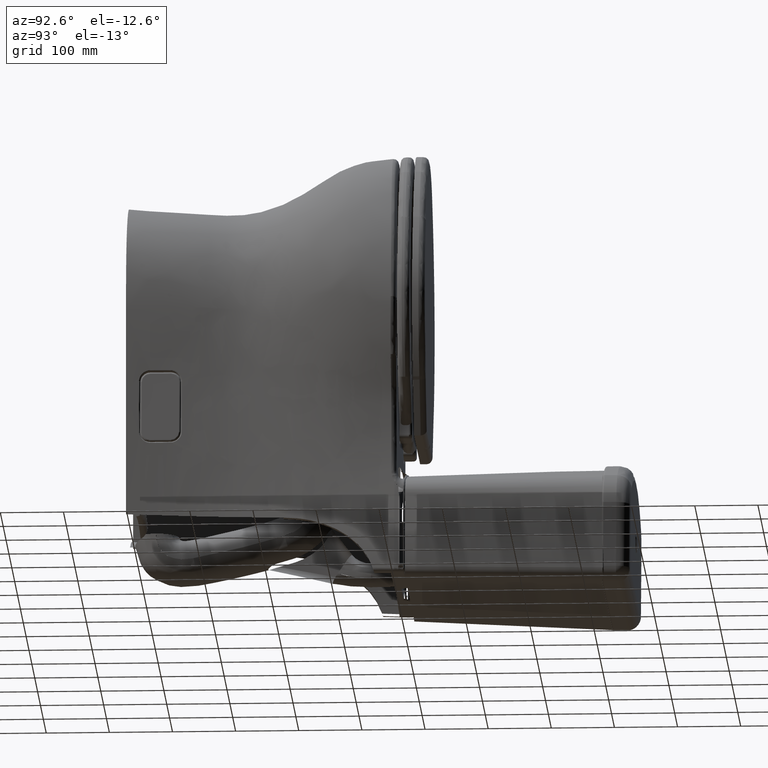
[diagram: clean part render]
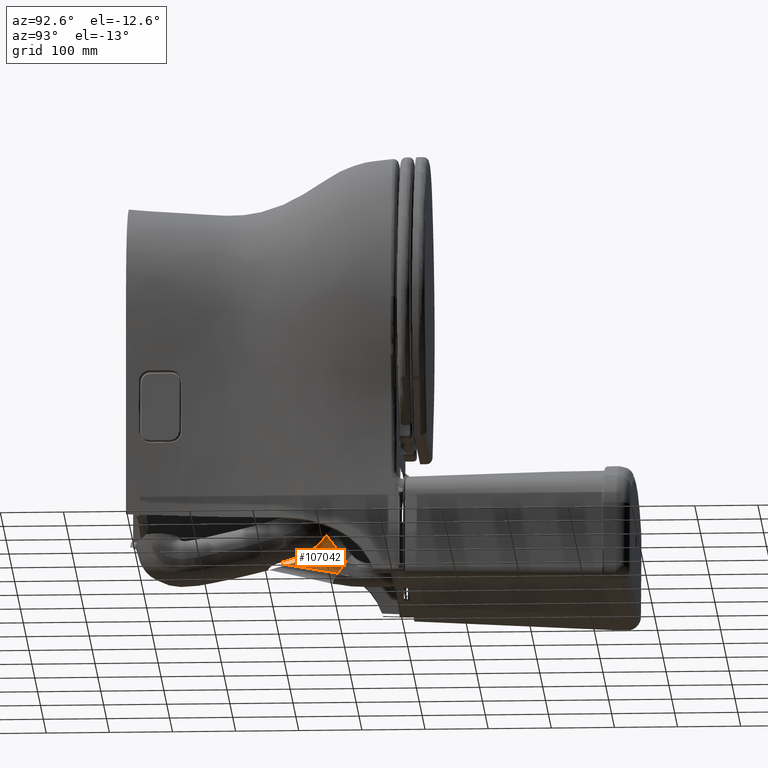
[diagram: same view with one face highlighted and labeled with its STEP entity id]
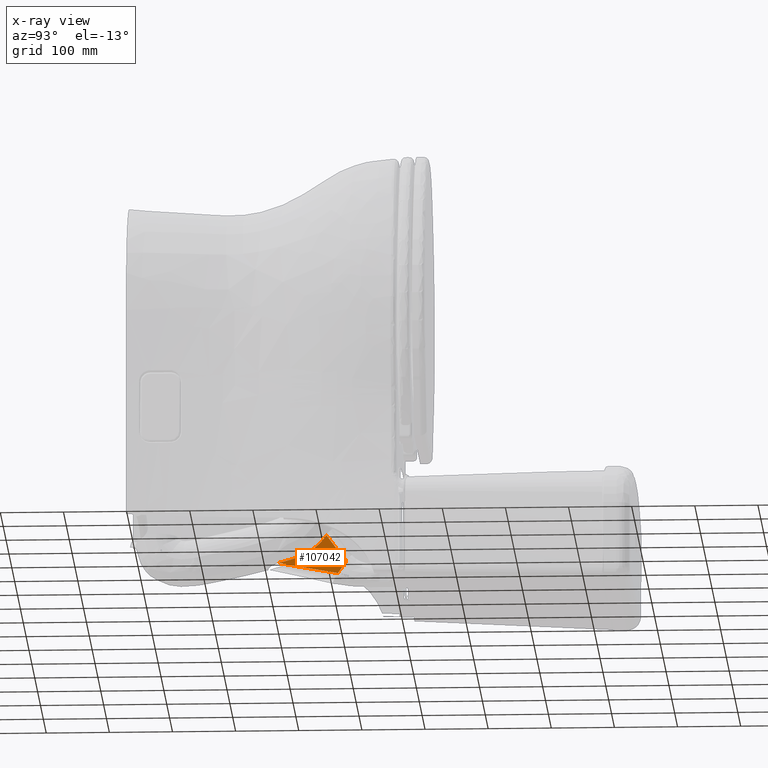
[diagram: x-ray of the same camera — body ghosted, the highlighted face saturated]
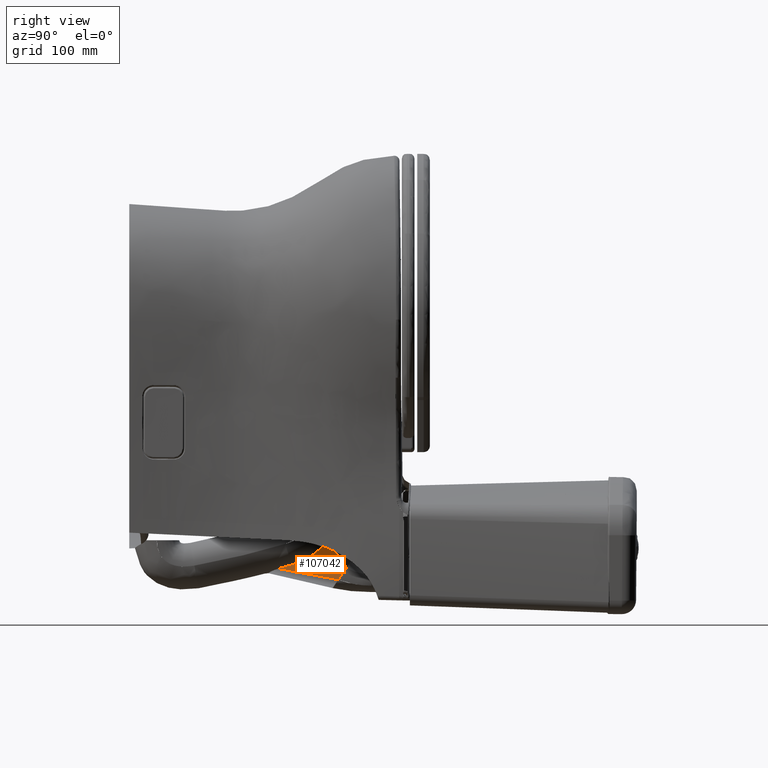
[diagram: same view with one face highlighted and labeled with its STEP entity id]
A machine part, auxiliary view. The second image highlights one B-rep face of the part: STEP entity #107042.
The next image is the same camera in x-ray: the body ghosted, the highlighted face saturated — about 0% of this face is hidden behind the body in this view.
A second angle (right view) of the same face is appended — the face is thin or edge-on in the first view.
In plain terms, the highlighted face is a freeform B-spline surface patch.
Its self-contained STEP definition (entity closure, byte-faithful):
#125 = CARTESIAN_POINT ( 'NONE',  ( 0.5593936604018990800, 5.742171554761168500, -4.698724592794828700 ) ) ;
#633 = CARTESIAN_POINT ( 'NONE',  ( 0.5596472631801368000, 5.760668480502043400, -4.710291362958173500 ) ) ;
#3805 = B_SPLINE_CURVE_WITH_KNOTS ( 'NONE', 3,
 ( #92503, #116950, #7467, #103666 ),
 .UNSPECIFIED., .F., .F.,
 ( 4, 4 ),
 ( 0.0000000000000000000, 1.000000000000000000 ),
 .UNSPECIFIED. ) ;
#7336 = CARTESIAN_POINT ( 'NONE',  ( 0.5587669802941737100, 7.272754773816142700, -6.870736700192913400 ) ) ;
#7467 = CARTESIAN_POINT ( 'NONE',  ( 0.5665849485657303800, 6.739369454749556200, -5.688507654884135800 ) ) ;
#8229 = EDGE_CURVE ( 'NONE', #44383, #131358, #32424, .T. ) ;
#8244 = B_SPLINE_CURVE_WITH_KNOTS ( 'NONE', 3,
 ( #146261, #24049, #49992, #135126 ),
 .UNSPECIFIED., .F., .F.,
 ( 4, 4 ),
 ( 0.0000000000000000000, 1.000000000000000000 ),
 .UNSPECIFIED. ) ;
#8709 = CARTESIAN_POINT ( 'NONE',  ( 0.5612609778987228700, 5.884749434202755800, -4.793650171783465200 ) ) ;
#11925 = EDGE_CURVE ( 'NONE', #123926, #126711, #105294, .T. ) ;
#12791 = ORIENTED_EDGE ( 'NONE', *, *, #151806, .T. ) ;
#14324 = CARTESIAN_POINT ( 'NONE',  ( 0.5635827299025773000, 7.083395523037338200, -6.334330961966022000 ) ) ;
#15128 = CARTESIAN_POINT ( 'NONE',  ( 0.5545085389152796300, 7.390318352778742800, -7.278513322374016600 ) ) ;
#15482 = VERTEX_POINT ( 'NONE', #136973 ) ;
#15619 = EDGE_CURVE ( 'NONE', #54287, #60757, #142479, .T. ) ;
#16364 = EDGE_CURVE ( 'NONE', #55378, #62122, #113117, .T. ) ;
#17706 = VECTOR ( 'NONE', #37479, 39.37007874015748100 ) ;
#17726 = B_SPLINE_CURVE_WITH_KNOTS ( 'NONE', 3,
 ( #73002, #87344, #97977, #99029 ),
 .UNSPECIFIED., .F., .F.,
 ( 4, 4 ),
 ( 0.0000000000000000000, 1.000000000000000000 ),
 .UNSPECIFIED. ) ;
#18465 = B_SPLINE_SURFACE_WITH_KNOTS ( 'NONE', 3, 3, ( 
 ( #128023, #72131, #92881, #55659 ),
 ( #34941, #132268, #157190, #92365 ),
 ( #44438, #56695, #144433, #71605 ),
 ( #84367, #43411, #35478, #132799 ) ),
 .UNSPECIFIED., .F., .F., .F.,
 ( 4, 4 ),
 ( 4, 4 ),
 ( 0.0000000000000000000, 1.000000000000000000 ),
 ( -7.604532898967999500E-012, 0.8147815567930000200 ),
 .UNSPECIFIED. ) ;
#19567 = CARTESIAN_POINT ( 'NONE',  ( 0.5598777404171567700, 7.239867155713121800, -6.761661124462087900 ) ) ;
#21064 = EDGE_CURVE ( 'NONE', #105424, #108189, #124702, .T. ) ;
#21167 = EDGE_CURVE ( 'NONE', #131358, #27695, #35870, .T. ) ;
#22282 = CARTESIAN_POINT ( 'NONE',  ( 0.5628479816181649600, 6.020718738747244300, -4.895534293736220700 ) ) ;
#23100 = ORIENTED_EDGE ( 'NONE', *, *, #73510, .T. ) ;
#23330 = LINE ( 'NONE', #48099, #17706 ) ;
#23632 = CARTESIAN_POINT ( 'NONE',  ( 0.5615800938362847100, 5.910453571193392500, -4.811830221589194600 ) ) ;
#23786 = ORIENTED_EDGE ( 'NONE', *, *, #144306, .T. ) ;
#24049 = CARTESIAN_POINT ( 'NONE',  ( 0.5648848145969392900, 6.233887273092262800, -5.080060250183186600 ) ) ;
#25292 = ORIENTED_EDGE ( 'NONE', *, *, #138594, .T. ) ;
#25853 = CARTESIAN_POINT ( 'NONE',  ( 0.5626175026839219700, 5.999553725267951200, -4.878754123971263300 ) ) ;
#25894 = EDGE_CURVE ( 'NONE', #108189, #57911, #39818, .T. ) ;
#26618 = CARTESIAN_POINT ( 'NONE',  ( 0.5666562656252076600, 6.608113676711417900, -5.502304124236219200 ) ) ;
#26937 = ORIENTED_EDGE ( 'NONE', *, *, #43966, .T. ) ;
#27607 = ORIENTED_EDGE ( 'NONE', *, *, #67926, .T. ) ;
#27695 = VERTEX_POINT ( 'NONE', #40484 ) ;
#28243 = CARTESIAN_POINT ( 'NONE',  ( 0.5566436666418483900, 7.331903106569689600, -7.074520863921261300 ) ) ;
#28760 = CARTESIAN_POINT ( 'NONE',  ( 0.5572459626341993400, 7.315269647363565200, -7.016833619981873900 ) ) ;
#29278 = CARTESIAN_POINT ( 'NONE',  ( 0.5587669802941737100, 7.272754773816142700, -6.870736700192913400 ) ) ;
#31281 = CARTESIAN_POINT ( 'NONE',  ( 0.5648952549844037400, 6.989985595612313100, -6.130856342547487800 ) ) ;
#31562 = CARTESIAN_POINT ( 'NONE',  ( 0.5666562656252076600, 6.608113676711417900, -5.502304124236219200 ) ) ;
#31674 = EDGE_CURVE ( 'NONE', #27695, #131568, #68562, .T. ) ;
#31928 = CARTESIAN_POINT ( 'NONE',  ( 0.6299046589622419000, 8.198925532644286900, -3.969920171381744000 ) ) ;
#32056 = CARTESIAN_POINT ( 'NONE',  ( 0.5666335282239337600, 6.707707263107482600, -5.641850911476379500 ) ) ;
#32374 = CARTESIAN_POINT ( 'NONE',  ( 0.5658749331545365200, 6.885939210122441700, -5.931565421681102500 ) ) ;
#32424 = B_SPLINE_CURVE_WITH_KNOTS ( 'NONE', 3,
 ( #32056, #116603, #55438, #31562 ),
 .UNSPECIFIED., .F., .F.,
 ( 4, 4 ),
 ( 0.0000000000000000000, 1.000000000000000000 ),
 .UNSPECIFIED. ) ;
#33329 = ORIENTED_EDGE ( 'NONE', *, *, #16364, .T. ) ;
#33356 = VERTEX_POINT ( 'NONE', #37151 ) ;
#33887 = CARTESIAN_POINT ( 'NONE',  ( 0.5651639777500131500, 6.965040993721656200, -6.081164805519685000 ) ) ;
#34941 = CARTESIAN_POINT ( 'NONE',  ( 0.6299046586480315800, 7.768041980485433500, -3.676440282549212400 ) ) ;
#35092 = ORIENTED_EDGE ( 'NONE', *, *, #31674, .T. ) ;
#35478 = CARTESIAN_POINT ( 'NONE',  ( 0.5764413016480315300, 7.733440740485432800, -6.462940741547243700 ) ) ;
#35807 = CARTESIAN_POINT ( 'NONE',  ( 0.5612609778987228700, 5.884749434202755800, -4.793650171783465200 ) ) ;
#35870 = B_SPLINE_CURVE_WITH_KNOTS ( 'NONE', 3,
 ( #26618, #64818, #76522, #63770 ),
 .UNSPECIFIED., .F., .F.,
 ( 4, 4 ),
 ( 0.0000000000000000000, 1.000000000000000000 ),
 .UNSPECIFIED. ) ;
#36358 = EDGE_CURVE ( 'NONE', #74363, #33356, #91838, .T. ) ;
#37140 = CARTESIAN_POINT ( 'NONE',  ( 0.5642460652616766400, 7.037826824464565900, -6.233755061377954700 ) ) ;
#37151 = CARTESIAN_POINT ( 'NONE',  ( 0.5620898234587499200, 5.953540159596062000, -4.843743462881891800 ) ) ;
#37479 = DIRECTION ( 'NONE',  ( 0.0000000000000000000, 0.8264989692234775400, -0.5629382327329783800 ) ) ;
#39818 = B_SPLINE_CURVE_WITH_KNOTS ( 'NONE', 3,
 ( #73794, #87094, #14324, #37140 ),
 .UNSPECIFIED., .F., .F.,
 ( 4, 4 ),
 ( 0.0000000000000000000, 1.000000000000000000 ),
 .UNSPECIFIED. ) ;
#39861 = CARTESIAN_POINT ( 'NONE',  ( 0.5613942381660748100, 7.185530704508650500, -6.599971067462060000 ) ) ;
#40357 = CARTESIAN_POINT ( 'NONE',  ( 0.5664226600178542400, 6.502461074143703000, -5.368497265035432300 ) ) ;
#40484 = CARTESIAN_POINT ( 'NONE',  ( 0.5664226600178542400, 6.502461074143703000, -5.368497265035432300 ) ) ;
#41465 = CARTESIAN_POINT ( 'NONE',  ( 0.6299046589645387300, 7.441365177559893200, -3.453936844897453500 ) ) ;
#41563 = ORIENTED_EDGE ( 'NONE', *, *, #97849, .T. ) ;
#43411 = CARTESIAN_POINT ( 'NONE',  ( 0.6031729796480315200, 7.966183136485434500, -5.216430456547244400 ) ) ;
#43966 = EDGE_CURVE ( 'NONE', #131568, #127489, #8244, .T. ) ;
#44255 = VERTEX_POINT ( 'NONE', #41465 ) ;
#44383 = VERTEX_POINT ( 'NONE', #153599 ) ;
#44438 = CARTESIAN_POINT ( 'NONE',  ( 0.6299046586480315800, 7.872248729485432900, -3.747416733549212800 ) ) ;
#45058 = CARTESIAN_POINT ( 'NONE',  ( 0.5663678268492674500, 6.800237021212207200, -5.785091601708662000 ) ) ;
#45374 = CARTESIAN_POINT ( 'NONE',  ( 0.5523583118781363300, 7.447971247349213900, -7.482722359838581900 ) ) ;
#45922 = CARTESIAN_POINT ( 'NONE',  ( 0.5608200827273528400, 5.849738412132286000, -4.769251791783465100 ) ) ;
#47920 = ORIENTED_EDGE ( 'NONE', *, *, #71895, .T. ) ;
#48099 = CARTESIAN_POINT ( 'NONE',  ( 0.6299046586480315800, 7.820145354985433200, -3.711928508048966300 ) ) ;
#48311 = B_SPLINE_CURVE_WITH_KNOTS ( 'NONE', 3,
 ( #33887, #155617, #93985, #58307 ),
 .UNSPECIFIED., .F., .F.,
 ( 4, 4 ),
 ( 0.0000000000000000000, 1.000000000000000000 ),
 .UNSPECIFIED. ) ;
#48551 = ORIENTED_EDGE ( 'NONE', *, *, #11925, .T. ) ;
#49992 = CARTESIAN_POINT ( 'NONE',  ( 0.5645430469175147800, 6.192665681193410900, -5.041546057505732900 ) ) ;
#50754 = CARTESIAN_POINT ( 'NONE',  ( 0.5628479816181649600, 6.020718738747244300, -4.895534293736220700 ) ) ;
#51240 = CARTESIAN_POINT ( 'NONE',  ( 0.5603616811586653600, 5.814309593079134000, -4.745293332314959800 ) ) ;
#52076 = ORIENTED_EDGE ( 'NONE', *, *, #8229, .T. ) ;
#52583 = CARTESIAN_POINT ( 'NONE',  ( 0.5618498417689658000, 7.166077854012598900, -6.547137685917324000 ) ) ;
#52946 = CARTESIAN_POINT ( 'NONE',  ( 0.5501879240226643700, 7.504862721753425200, -7.687147662393035900 ) ) ;
#54287 = VERTEX_POINT ( 'NONE', #31928 ) ;
#54653 = B_SPLINE_CURVE_WITH_KNOTS ( 'NONE', 3,
 ( #72693, #157230, #83879, #45374 ),
 .UNSPECIFIED., .F., .F.,
 ( 4, 4 ),
 ( 0.0000000000000000000, 1.000000000000000000 ),
 .UNSPECIFIED. ) ;
#55378 = VERTEX_POINT ( 'NONE', #144054 ) ;
#55438 = CARTESIAN_POINT ( 'NONE',  ( 0.5666909014515425500, 6.642051965344999000, -5.547512338700156100 ) ) ;
#55659 = CARTESIAN_POINT ( 'NONE',  ( 0.5497096236480315500, 5.508802943485433100, -4.869684737547245000 ) ) ;
#56195 = CARTESIAN_POINT ( 'NONE',  ( 0.5645892841549525800, 7.014248945991675500, -6.181715694161346700 ) ) ;
#56695 = CARTESIAN_POINT ( 'NONE',  ( 0.6031729796480315200, 7.612677822485434100, -4.883100071547244300 ) ) ;
#57911 = VERTEX_POINT ( 'NONE', #75894 ) ;
#58008 = VERTEX_POINT ( 'NONE', #145412 ) ;
#58307 = CARTESIAN_POINT ( 'NONE',  ( 0.5658749331545365200, 6.885939210122441700, -5.931565421681102500 ) ) ;
#60550 = CARTESIAN_POINT ( 'NONE',  ( 0.5537139367613579400, 7.411847267524954900, -7.354224459275583200 ) ) ;
#60757 = VERTEX_POINT ( 'NONE', #52946 ) ;
#62122 = VERTEX_POINT ( 'NONE', #126414 ) ;
#62147 = VERTEX_POINT ( 'NONE', #151865 ) ;
#63198 = CARTESIAN_POINT ( 'NONE',  ( 0.5651784839506564000, 6.273711538096851100, -5.119251982826771300 ) ) ;
#63770 = CARTESIAN_POINT ( 'NONE',  ( 0.5664226600178542400, 6.502461074143703000, -5.368497265035432300 ) ) ;
#64818 = CARTESIAN_POINT ( 'NONE',  ( 0.5666213677254318100, 6.573918594266540800, -5.456753842243212900 ) ) ;
#67467 = CARTESIAN_POINT ( 'NONE',  ( 0.5523583118781363300, 7.447971247349213900, -7.482722359838581900 ) ) ;
#67828 = B_SPLINE_CURVE_WITH_KNOTS ( 'NONE', 3,
 ( #88882, #147912, #88346, #100553 ),
 .UNSPECIFIED., .F., .F.,
 ( 4, 4 ),
 ( 0.0000000000000000000, 1.000000000000000000 ),
 .UNSPECIFIED. ) ;
#67926 = EDGE_CURVE ( 'NONE', #15482, #58008, #80044, .T. ) ;
#68562 = B_SPLINE_CURVE_WITH_KNOTS ( 'NONE', 3,
 ( #40357, #149884, #123898, #63198 ),
 .UNSPECIFIED., .F., .F.,
 ( 4, 4 ),
 ( 0.0000000000000000000, 1.000000000000000000 ),
 .UNSPECIFIED. ) ;
#69387 = VERTEX_POINT ( 'NONE', #67467 ) ;
#70705 = CARTESIAN_POINT ( 'NONE',  ( 0.5609670477844718200, 5.861262085366876200, -4.777171887999330100 ) ) ;
#71605 = CARTESIAN_POINT ( 'NONE',  ( 0.5497096236480315500, 7.093536007485433000, -7.154466746547244700 ) ) ;
#71895 = EDGE_CURVE ( 'NONE', #60757, #69387, #54653, .T. ) ;
#72131 = CARTESIAN_POINT ( 'NONE',  ( 0.6031729796480315200, 6.797177766485432000, -3.925852808549212800 ) ) ;
#72693 = CARTESIAN_POINT ( 'NONE',  ( 0.5501879240226643700, 7.504862721753425200, -7.687147662393035900 ) ) ;
#73002 = CARTESIAN_POINT ( 'NONE',  ( 0.5641531809124068500, 6.150335569467715800, -5.004107397385827700 ) ) ;
#73510 = EDGE_CURVE ( 'NONE', #58008, #62147, #143094, .T. ) ;
#73631 = EDGE_CURVE ( 'NONE', #62122, #44383, #3805, .T. ) ;
#73794 = CARTESIAN_POINT ( 'NONE',  ( 0.5618498417689658000, 7.166077854012598900, -6.547137685917324000 ) ) ;
#74363 = VERTEX_POINT ( 'NONE', #22282 ) ;
#74971 = ORIENTED_EDGE ( 'NONE', *, *, #146687, .T. ) ;
#75894 = CARTESIAN_POINT ( 'NONE',  ( 0.5642460652616766400, 7.037826824464565900, -6.233755061377954700 ) ) ;
#76522 = CARTESIAN_POINT ( 'NONE',  ( 0.5665434991896451900, 6.538685982420238600, -5.412134906338031300 ) ) ;
#77510 = B_SPLINE_CURVE_WITH_KNOTS ( 'NONE', 3,
 ( #144038, #97229, #60550, #95672 ),
 .UNSPECIFIED., .F., .F.,
 ( 4, 4 ),
 ( 0.0000000000000000000, 1.000000000000000000 ),
 .UNSPECIFIED. ) ;
#77754 = CARTESIAN_POINT ( 'NONE',  ( 0.5566436666418483900, 7.331903106569689600, -7.074520863921261300 ) ) ;
#79470 = DIRECTION ( 'NONE',  ( -0.02107621178948570300, -0.1835024291025017000, -0.9827932904787689500 ) ) ;
#80040 = ORIENTED_EDGE ( 'NONE', *, *, #107119, .T. ) ;
#80044 = B_SPLINE_CURVE_WITH_KNOTS ( 'NONE', 3,
 ( #15128, #99058, #102752, #77754 ),
 .UNSPECIFIED., .F., .F.,
 ( 4, 4 ),
 ( 0.0000000000000000000, 1.000000000000000000 ),
 .UNSPECIFIED. ) ;
#80545 = CARTESIAN_POINT ( 'NONE',  ( 0.5666562656252076600, 6.608113676711417900, -5.502304124236219200 ) ) ;
#81759 = CARTESIAN_POINT ( 'NONE',  ( 0.5660772366296793500, 6.858299401119853500, -5.881892461941463400 ) ) ;
#83879 = CARTESIAN_POINT ( 'NONE',  ( 0.5515411731899869700, 7.469644746857532900, -7.560047353910771800 ) ) ;
#84367 = CARTESIAN_POINT ( 'NONE',  ( 0.6299046586480315800, 8.198925532485432700, -3.969920171547243600 ) ) ;
#86135 = B_SPLINE_CURVE_WITH_KNOTS ( 'NONE', 3,
 ( #90309, #56195, #31281, #92395 ),
 .UNSPECIFIED., .F., .F.,
 ( 4, 4 ),
 ( 0.0000000000000000000, 1.000000000000000000 ),
 .UNSPECIFIED. ) ;
#87094 = CARTESIAN_POINT ( 'NONE',  ( 0.5627839887382990500, 7.126192692727700600, -6.438810742264156100 ) ) ;
#87344 = CARTESIAN_POINT ( 'NONE',  ( 0.5637783325574510200, 6.109636006870079700, -4.968110864599549500 ) ) ;
#87765 = VERTEX_POINT ( 'NONE', #100336 ) ;
#88346 = CARTESIAN_POINT ( 'NONE',  ( 0.5605144816815567100, 5.825948736209380900, -4.753032007690739700 ) ) ;
#88882 = CARTESIAN_POINT ( 'NONE',  ( 0.5608200827273528400, 5.849738412132286000, -4.769251791783465100 ) ) ;
#90309 = CARTESIAN_POINT ( 'NONE',  ( 0.5642460652616766400, 7.037826824464565900, -6.233755061377954700 ) ) ;
#90431 = CARTESIAN_POINT ( 'NONE',  ( 0.5579537338516140600, 7.295596954037398200, -6.948930468867998500 ) ) ;
#91032 = ORIENTED_EDGE ( 'NONE', *, *, #15619, .T. ) ;
#91055 = LINE ( 'NONE', #156979, #131036 ) ;
#91838 = B_SPLINE_CURVE_WITH_KNOTS ( 'NONE', 3,
 ( #50754, #25853, #110855, #123153 ),
 .UNSPECIFIED., .F., .F.,
 ( 4, 4 ),
 ( 0.0000000000000000000, 1.000000000000000000 ),
 .UNSPECIFIED. ) ;
#92365 = CARTESIAN_POINT ( 'NONE',  ( 0.5497096236480315500, 5.915965280485432100, -5.424669017547243400 ) ) ;
#92395 = CARTESIAN_POINT ( 'NONE',  ( 0.5651639777500131500, 6.965040993721656200, -6.081164805519685000 ) ) ;
#92503 = CARTESIAN_POINT ( 'NONE',  ( 0.5663678268492674500, 6.800237021212207200, -5.785091601708662000 ) ) ;
#92751 = EDGE_CURVE ( 'NONE', #87765, #55378, #48311, .T. ) ;
#92881 = CARTESIAN_POINT ( 'NONE',  ( 0.5764413016480315300, 6.152990355485433900, -4.397768773547245000 ) ) ;
#93091 = CARTESIAN_POINT ( 'NONE',  ( 0.5603920293866008200, 7.222069624307875000, -6.707680719874014500 ) ) ;
#93326 = CARTESIAN_POINT ( 'NONE',  ( 0.5651784839506564000, 6.273711538096851100, -5.119251982826771300 ) ) ;
#93836 = EDGE_CURVE ( 'NONE', #69387, #15482, #77510, .T. ) ;
#93985 = CARTESIAN_POINT ( 'NONE',  ( 0.5656754311885896500, 6.913196266697503300, -5.980550514759780600 ) ) ;
#95672 = CARTESIAN_POINT ( 'NONE',  ( 0.5545085389152796300, 7.390318352778742800, -7.278513322374016600 ) ) ;
#96386 = DIRECTION ( 'NONE',  ( 0.03345653246684543400, 0.8062447940832536700, 0.5906352448414730100 ) ) ;
#96406 = CARTESIAN_POINT ( 'NONE',  ( 0.5618563756896315400, 5.933540192456751700, -4.828754367277811700 ) ) ;
#96839 = CARTESIAN_POINT ( 'NONE',  ( 0.5599699367657170500, 5.784418273136981100, -4.725385577461465500 ) ) ;
#97229 = CARTESIAN_POINT ( 'NONE',  ( 0.5529971944156572000, 7.431025749918767100, -7.422265560077470100 ) ) ;
#97263 = CARTESIAN_POINT ( 'NONE',  ( 0.5641531809124068500, 6.150335569467715800, -5.004107397385827700 ) ) ;
#97849 = EDGE_CURVE ( 'NONE', #57911, #87765, #86135, .T. ) ;
#97977 = CARTESIAN_POINT ( 'NONE',  ( 0.5633432661260259200, 6.066201005657704900, -4.931593813298300200 ) ) ;
#99029 = CARTESIAN_POINT ( 'NONE',  ( 0.5628479816181649600, 6.020718738747244300, -4.895534293736220700 ) ) ;
#99058 = CARTESIAN_POINT ( 'NONE',  ( 0.5551410767667988000, 7.373180400076096300, -7.218243965517149100 ) ) ;
#100336 = CARTESIAN_POINT ( 'NONE',  ( 0.5651639777500131500, 6.965040993721656200, -6.081164805519685000 ) ) ;
#100553 = CARTESIAN_POINT ( 'NONE',  ( 0.5603616811586653600, 5.814309593079134000, -4.745293332314959800 ) ) ;
#102530 = VECTOR ( 'NONE', #79470, 39.37007874015748900 ) ;
#102752 = CARTESIAN_POINT ( 'NONE',  ( 0.5558527860089705900, 7.353744662997574000, -7.150270538804108800 ) ) ;
#103666 = CARTESIAN_POINT ( 'NONE',  ( 0.5666335282239337600, 6.707707263107482600, -5.641850911476379500 ) ) ;
#103926 = CARTESIAN_POINT ( 'NONE',  ( 0.5898071407730314200, 7.849811938610431900, -5.839685599047243200 ) ) ;
#105294 = B_SPLINE_CURVE_WITH_KNOTS ( 'NONE', 3,
 ( #130316, #131370, #70705, #121239 ),
 .UNSPECIFIED., .F., .F.,
 ( 4, 4 ),
 ( 0.0000000000000000000, 1.000000000000000000 ),
 .UNSPECIFIED. ) ;
#105424 = VERTEX_POINT ( 'NONE', #93091 ) ;
#106014 = B_SPLINE_CURVE_WITH_KNOTS ( 'NONE', 3,
 ( #110105, #96839, #633, #125 ),
 .UNSPECIFIED., .F., .F.,
 ( 4, 4 ),
 ( 0.0000000000000000000, 1.000000000000000000 ),
 .UNSPECIFIED. ) ;
#107042 = ADVANCED_FACE ( 'NONE', ( #107932 ), #18465, .T. ) ;
#107097 = CARTESIAN_POINT ( 'NONE',  ( 0.5618498417689658000, 7.166077854012598900, -6.547137685917324000 ) ) ;
#107119 = EDGE_CURVE ( 'NONE', #62147, #105424, #149603, .T. ) ;
#107263 = CARTESIAN_POINT ( 'NONE',  ( 0.5593936604018990800, 5.742171554761168500, -4.698724592794828700 ) ) ;
#107932 = FACE_OUTER_BOUND ( 'NONE', #154660, .T. ) ;
#108189 = VERTEX_POINT ( 'NONE', #107097 ) ;
#108278 = CARTESIAN_POINT ( 'NONE',  ( 0.5593360573863454000, 7.256770736945966000, -6.816019852197548800 ) ) ;
#110105 = CARTESIAN_POINT ( 'NONE',  ( 0.5603616811586653600, 5.814309593079134000, -4.745293332314959800 ) ) ;
#110376 = ORIENTED_EDGE ( 'NONE', *, *, #25894, .T. ) ;
#110855 = CARTESIAN_POINT ( 'NONE',  ( 0.5623647832974481000, 5.977096552198671200, -4.861397941816138200 ) ) ;
#110899 = ORIENTED_EDGE ( 'NONE', *, *, #93836, .T. ) ;
#113117 = B_SPLINE_CURVE_WITH_KNOTS ( 'NONE', 3,
 ( #32374, #81759, #140828, #45058 ),
 .UNSPECIFIED., .F., .F.,
 ( 4, 4 ),
 ( 0.0000000000000000000, 1.000000000000000000 ),
 .UNSPECIFIED. ) ;
#113765 = CARTESIAN_POINT ( 'NONE',  ( 0.5609083007052825300, 7.204203490971151400, -6.653492244670867500 ) ) ;
#114593 = ORIENTED_EDGE ( 'NONE', *, *, #36358, .T. ) ;
#116603 = CARTESIAN_POINT ( 'NONE',  ( 0.5666833223177840700, 6.675253539933030400, -5.594027784856924900 ) ) ;
#116950 = CARTESIAN_POINT ( 'NONE',  ( 0.5664963814408396900, 6.770214260127751500, -5.736251726332939800 ) ) ;
#121239 = CARTESIAN_POINT ( 'NONE',  ( 0.5608200827273528400, 5.849738412132286000, -4.769251791783465100 ) ) ;
#123153 = CARTESIAN_POINT ( 'NONE',  ( 0.5620898234587499200, 5.953540159596062000, -4.843743462881891800 ) ) ;
#123305 = EDGE_CURVE ( 'NONE', #44255, #54287, #23330, .T. ) ;
#123898 = CARTESIAN_POINT ( 'NONE',  ( 0.5657659761349352900, 6.353380890796114700, -5.197655943897306200 ) ) ;
#123926 = VERTEX_POINT ( 'NONE', #8709 ) ;
#124702 = B_SPLINE_CURVE_WITH_KNOTS ( 'NONE', 3,
 ( #149913, #113765, #39861, #52583 ),
 .UNSPECIFIED., .F., .F.,
 ( 4, 4 ),
 ( 0.0000000000000000000, 1.000000000000000000 ),
 .UNSPECIFIED. ) ;
#126414 = CARTESIAN_POINT ( 'NONE',  ( 0.5663678268492674500, 6.800237021212207200, -5.785091601708662000 ) ) ;
#126711 = VERTEX_POINT ( 'NONE', #45922 ) ;
#127489 = VERTEX_POINT ( 'NONE', #97263 ) ;
#128023 = CARTESIAN_POINT ( 'NONE',  ( 0.6299046586480315800, 7.441365177485433700, -3.453936844549212900 ) ) ;
#129574 = CARTESIAN_POINT ( 'NONE',  ( 0.5603920293866008200, 7.222069624307875000, -6.707680719874014500 ) ) ;
#129907 = ORIENTED_EDGE ( 'NONE', *, *, #73631, .T. ) ;
#130316 = CARTESIAN_POINT ( 'NONE',  ( 0.5612609778987228700, 5.884749434202755800, -4.793650171783465200 ) ) ;
#131036 = VECTOR ( 'NONE', #96386, 39.37007874015748100 ) ;
#131358 = VERTEX_POINT ( 'NONE', #80545 ) ;
#131370 = CARTESIAN_POINT ( 'NONE',  ( 0.5611140128415952300, 5.872936024261663100, -4.785309991261398100 ) ) ;
#131568 = VERTEX_POINT ( 'NONE', #93326 ) ;
#132079 = CARTESIAN_POINT ( 'NONE',  ( 0.5620898234587499200, 5.953540159596062000, -4.843743462881891800 ) ) ;
#132166 = ORIENTED_EDGE ( 'NONE', *, *, #92751, .T. ) ;
#132268 = CARTESIAN_POINT ( 'NONE',  ( 0.6031729796480315200, 7.150683080485433300, -4.259183194547244300 ) ) ;
#132799 = CARTESIAN_POINT ( 'NONE',  ( 0.5497096236480315500, 7.500698345485433000, -7.709451026547244000 ) ) ;
#135126 = CARTESIAN_POINT ( 'NONE',  ( 0.5641531809124068500, 6.150335569467715800, -5.004107397385827700 ) ) ;
#136973 = CARTESIAN_POINT ( 'NONE',  ( 0.5545085389152796300, 7.390318352778742800, -7.278513322374016600 ) ) ;
#138594 = EDGE_CURVE ( 'NONE', #127489, #74363, #17726, .T. ) ;
#140828 = CARTESIAN_POINT ( 'NONE',  ( 0.5662415345279263600, 6.829731438310243000, -5.833071990018768600 ) ) ;
#142479 = LINE ( 'NONE', #103926, #102530 ) ;
#143094 = B_SPLINE_CURVE_WITH_KNOTS ( 'NONE', 3,
 ( #28243, #28760, #90431, #29278 ),
 .UNSPECIFIED., .F., .F.,
 ( 4, 4 ),
 ( 0.0000000000000000000, 1.000000000000000000 ),
 .UNSPECIFIED. ) ;
#144038 = CARTESIAN_POINT ( 'NONE',  ( 0.5523583118781363300, 7.447971247349213900, -7.482722359838581900 ) ) ;
#144054 = CARTESIAN_POINT ( 'NONE',  ( 0.5658749331545365200, 6.885939210122441700, -5.931565421681102500 ) ) ;
#144306 = EDGE_CURVE ( 'NONE', #147004, #144908, #106014, .T. ) ;
#144433 = CARTESIAN_POINT ( 'NONE',  ( 0.5764413016480315300, 7.353106915485433600, -6.018783409547245000 ) ) ;
#144908 = VERTEX_POINT ( 'NONE', #107263 ) ;
#145359 = ORIENTED_EDGE ( 'NONE', *, *, #151874, .T. ) ;
#145412 = CARTESIAN_POINT ( 'NONE',  ( 0.5566436666418483900, 7.331903106569689600, -7.074520863921261300 ) ) ;
#146261 = CARTESIAN_POINT ( 'NONE',  ( 0.5651784839506564000, 6.273711538096851100, -5.119251982826771300 ) ) ;
#146687 = EDGE_CURVE ( 'NONE', #33356, #123926, #147798, .T. ) ;
#147004 = VERTEX_POINT ( 'NONE', #51240 ) ;
#147798 = B_SPLINE_CURVE_WITH_KNOTS ( 'NONE', 3,
 ( #132079, #96406, #23632, #35807 ),
 .UNSPECIFIED., .F., .F.,
 ( 4, 4 ),
 ( 0.0000000000000000000, 1.000000000000000000 ),
 .UNSPECIFIED. ) ;
#147912 = CARTESIAN_POINT ( 'NONE',  ( 0.5606672822044525000, 5.837762466270731900, -4.761024234057798000 ) ) ;
#149603 = B_SPLINE_CURVE_WITH_KNOTS ( 'NONE', 3,
 ( #7336, #108278, #19567, #129574 ),
 .UNSPECIFIED., .F., .F.,
 ( 4, 4 ),
 ( 0.0000000000000000000, 1.000000000000000000 ),
 .UNSPECIFIED. ) ;
#149884 = CARTESIAN_POINT ( 'NONE',  ( 0.5661807014907068700, 6.429927255290112800, -5.281120788968906700 ) ) ;
#149913 = CARTESIAN_POINT ( 'NONE',  ( 0.5603920293866008200, 7.222069624307875000, -6.707680719874014500 ) ) ;
#150216 = ORIENTED_EDGE ( 'NONE', *, *, #21064, .T. ) ;
#151806 = EDGE_CURVE ( 'NONE', #144908, #44255, #91055, .T. ) ;
#151865 = CARTESIAN_POINT ( 'NONE',  ( 0.5587669802941737100, 7.272754773816142700, -6.870736700192913400 ) ) ;
#151874 = EDGE_CURVE ( 'NONE', #126711, #147004, #67828, .T. ) ;
#153326 = ORIENTED_EDGE ( 'NONE', *, *, #123305, .T. ) ;
#153599 = CARTESIAN_POINT ( 'NONE',  ( 0.5666335282239337600, 6.707707263107482600, -5.641850911476379500 ) ) ;
#154285 = ORIENTED_EDGE ( 'NONE', *, *, #21167, .T. ) ;
#154660 = EDGE_LOOP ( 'NONE', ( #23786, #12791, #153326, #91032, #47920, #110899, #27607, #23100, #80040, #150216, #110376, #41563, #132166, #33329, #129907, #52076, #154285, #35092, #26937, #25292, #114593, #74971, #48551, #145359 ) ) ;
#155617 = CARTESIAN_POINT ( 'NONE',  ( 0.5654384460537439400, 6.939563051699156700, -6.030410815596800600 ) ) ;
#156979 = CARTESIAN_POINT ( 'NONE',  ( 0.5898071407730314200, 6.475084060860432100, -4.161810791048227800 ) ) ;
#157190 = CARTESIAN_POINT ( 'NONE',  ( 0.5764413016480315300, 6.533324180485433200, -4.841926105547244700 ) ) ;
#157230 = CARTESIAN_POINT ( 'NONE',  ( 0.5508177105715065200, 7.488560916773934700, -7.628157316875932500 ) ) ;